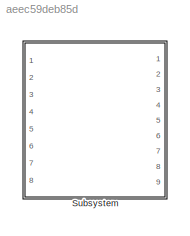
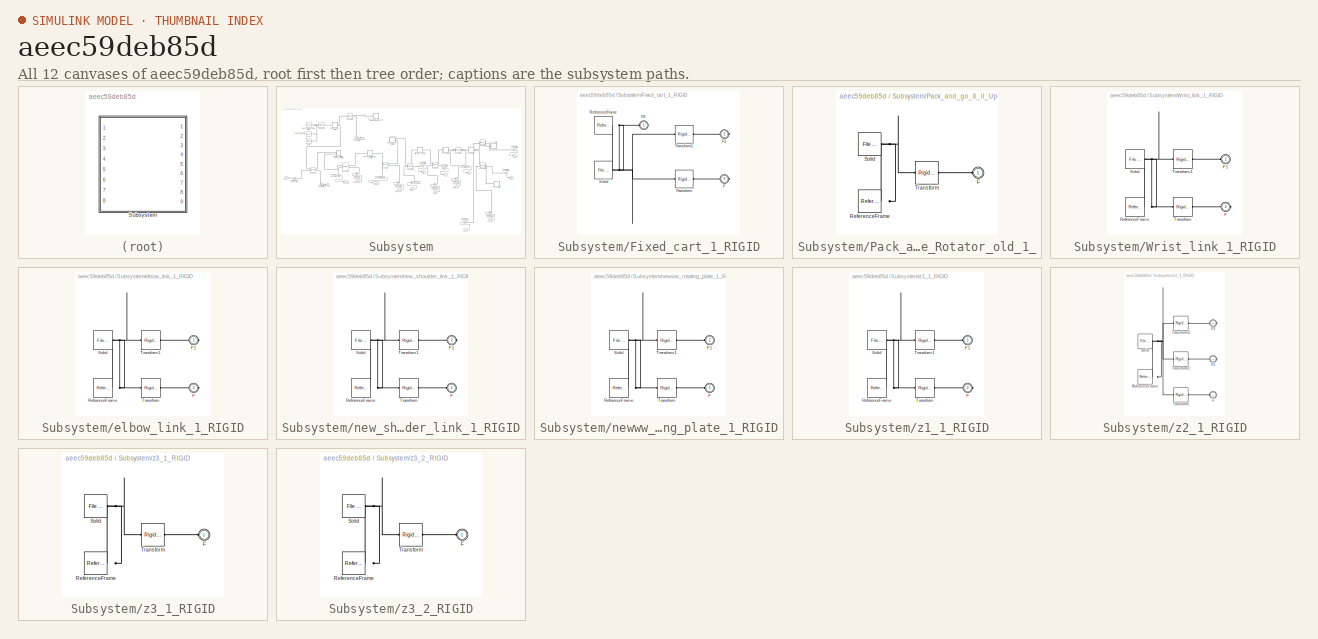
[diagram: thumbnail index - all 12 canvases of the model, root first then tree order]
MODEL slx_aeec59deb85d
KIND model
CONFIG AbsTol = auto
CONFIG EnableMultiTasking = off
CONFIG FixedStep = auto
CONFIG MaxStep = auto
CONFIG MinStep = auto
CONFIG RelTol = 1e-3
CONFIG SampleTimeConstraint = Unconstrained
CONFIG SolverName = VariableStepAuto
CONFIG StartTime = 0.0
CONFIG StopTime = 10.0
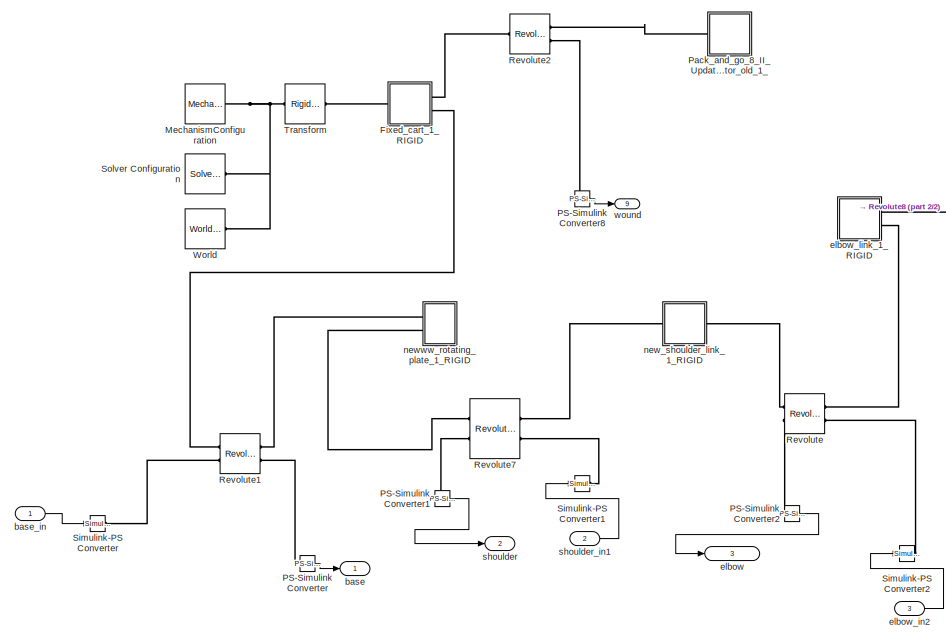
[diagram: Subsystem - part 1/2, middle left region]
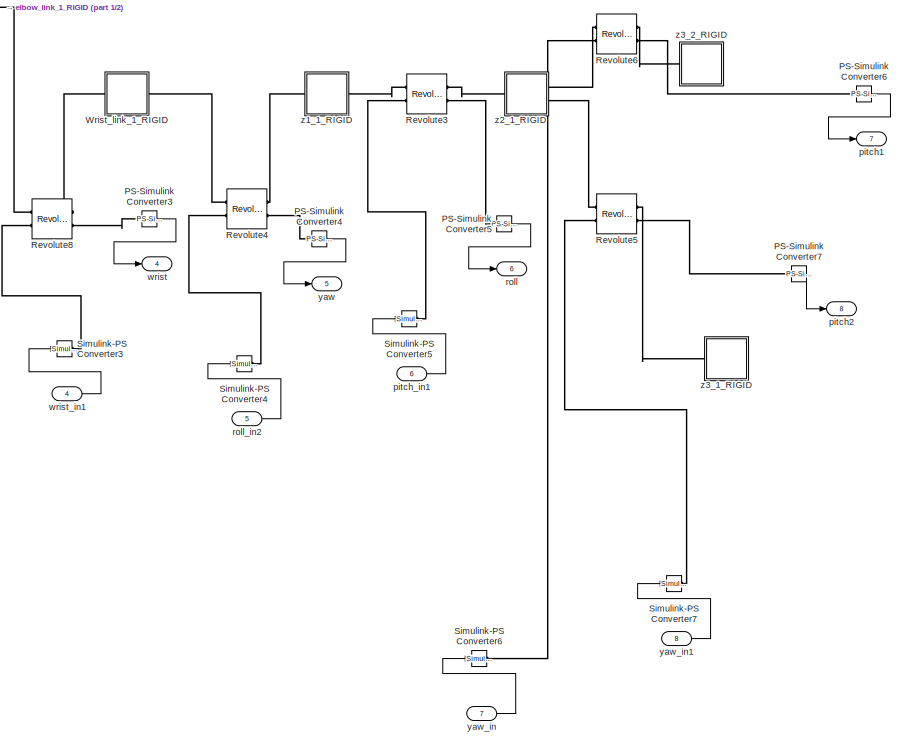
[diagram: Subsystem - part 2/2, right side, full height]
BLOCK [SubSystem] Subsystem
  Ports = [8, 9]
  RequestExecContextInheritance = off
BLOCK [SubSystem] Subsystem/Fixed_cart_1_RIGID
  Ports = [0, 0, 0, 0, 0, 1, 2]
  RequestExecContextInheritance = off
BLOCK [PMIOPort] Subsystem/Fixed_cart_1_RIGID/F
  Port = 3
  Side = Right
BLOCK [PMIOPort] Subsystem/Fixed_cart_1_RIGID/F1
  Port = 2
  Side = Right
BLOCK [PMIOPort] Subsystem/Fixed_cart_1_RIGID/F2
  Side = Left
BLOCK [Reference] Subsystem/Fixed_cart_1_RIGID/ReferenceFrame  REF=sm_lib/Frames and
Transforms/Reference
Frame
  Ports = [0, 0, 0, 0, 0, 0, 1]
  SourceBlock = sm_lib/Frames and\nTransforms/Reference\nFrame
  SourceProductBaseCode = MS
  SourceType = Reference\nFrame
BLOCK [Reference] Subsystem/Fixed_cart_1_RIGID/Solid  REF=sm_lib/Body Elements/File Solid
  Ports = [0, 0, 0, 0, 0, 0, 1]
  SourceBlock = sm_lib/Body Elements/File Solid
  SourceProductBaseCode = MS
  SourceType = File Solid
BLOCK [Reference] Subsystem/Fixed_cart_1_RIGID/Transform  REF=sm_lib/Frames and
Transforms/Rigid
Transform
  Ports = [0, 0, 0, 0, 0, 1, 1]
  SourceBlock = sm_lib/Frames and\nTransforms/Rigid\nTransform
  SourceProductBaseCode = MS
  SourceType = Rigid\nTransform
BLOCK [Reference] Subsystem/Fixed_cart_1_RIGID/Transform1  REF=sm_lib/Frames and
Transforms/Rigid
Transform
  Ports = [0, 0, 0, 0, 0, 1, 1]
  SourceBlock = sm_lib/Frames and\nTransforms/Rigid\nTransform
  SourceProductBaseCode = MS
  SourceType = Rigid\nTransform
BLOCK [Reference] Subsystem/MechanismConfiguration  REF=sm_lib/Utilities/Mechanism
Configuration
  Ports = [0, 0, 0, 0, 0, 0, 1]
  SourceBlock = sm_lib/Utilities/Mechanism\nConfiguration
  SourceProductBaseCode = MS
  SourceType = Mechanism\nConfiguration
BLOCK [Reference] Subsystem/PS-Simulink Converter  REF=nesl_utility/PS-Simulink
Converter
  Ports = [0, 1, 0, 0, 0, 1]
  SourceBlock = nesl_utility/PS-Simulink\nConverter
  SourceProductBaseCode = PW,SS
  SourceType = PS-Simulink\nConverter
BLOCK [Reference] Subsystem/PS-Simulink Converter1  REF=nesl_utility/PS-Simulink
Converter
  Ports = [0, 1, 0, 0, 0, 1]
  SourceBlock = nesl_utility/PS-Simulink\nConverter
  SourceProductBaseCode = PW,SS
  SourceType = PS-Simulink\nConverter
BLOCK [Reference] Subsystem/PS-Simulink Converter2  REF=nesl_utility/PS-Simulink
Converter
  Ports = [0, 1, 0, 0, 0, 1]
  SourceBlock = nesl_utility/PS-Simulink\nConverter
  SourceProductBaseCode = PW,SS
  SourceType = PS-Simulink\nConverter
BLOCK [Reference] Subsystem/PS-Simulink Converter3  REF=nesl_utility/PS-Simulink
Converter
  NameLocation = right
  Ports = [0, 1, 0, 0, 0, 1]
  SourceBlock = nesl_utility/PS-Simulink\nConverter
  SourceProductBaseCode = PW,SS
  SourceType = PS-Simulink\nConverter
BLOCK [Reference] Subsystem/PS-Simulink Converter4  REF=nesl_utility/PS-Simulink
Converter
  NameLocation = right
  Ports = [0, 1, 0, 0, 0, 1]
  SourceBlock = nesl_utility/PS-Simulink\nConverter
  SourceProductBaseCode = PW,SS
  SourceType = PS-Simulink\nConverter
BLOCK [Reference] Subsystem/PS-Simulink Converter5  REF=nesl_utility/PS-Simulink
Converter
  NameLocation = right
  Ports = [0, 1, 0, 0, 0, 1]
  SourceBlock = nesl_utility/PS-Simulink\nConverter
  SourceProductBaseCode = PW,SS
  SourceType = PS-Simulink\nConverter
BLOCK [Reference] Subsystem/PS-Simulink Converter6  REF=nesl_utility/PS-Simulink
Converter
  NameLocation = right
  Ports = [0, 1, 0, 0, 0, 1]
  SourceBlock = nesl_utility/PS-Simulink\nConverter
  SourceProductBaseCode = PW,SS
  SourceType = PS-Simulink\nConverter
BLOCK [Reference] Subsystem/PS-Simulink Converter7  REF=nesl_utility/PS-Simulink
Converter
  NameLocation = right
  Ports = [0, 1, 0, 0, 0, 1]
  SourceBlock = nesl_utility/PS-Simulink\nConverter
  SourceProductBaseCode = PW,SS
  SourceType = PS-Simulink\nConverter
BLOCK [Reference] Subsystem/PS-Simulink Converter8  REF=nesl_utility/PS-Simulink
Converter
  Ports = [0, 1, 0, 0, 0, 1]
  SourceBlock = nesl_utility/PS-Simulink\nConverter
  SourceProductBaseCode = PW,SS
  SourceType = PS-Simulink\nConverter
BLOCK [SubSystem] Subsystem/Pack_and_go_8_II_Updated_Final_Assembly_FileBase_Rotator_old_1_
  Ports = [0, 0, 0, 0, 0, 1]
  RequestExecContextInheritance = off
BLOCK [PMIOPort] Subsystem/Pack_and_go_8_II_Updated_Final_Assembly_FileBase_Rotator_old_1_/F
  Side = Left
BLOCK [Reference] Subsystem/Pack_and_go_8_II_Updated_Final_Assembly_FileBase_Rotator_old_1_/ReferenceFrame  REF=sm_lib/Frames and
Transforms/Reference
Frame
  Ports = [0, 0, 0, 0, 0, 0, 1]
  SourceBlock = sm_lib/Frames and\nTransforms/Reference\nFrame
  SourceProductBaseCode = MS
  SourceType = Reference\nFrame
BLOCK [Reference] Subsystem/Pack_and_go_8_II_Updated_Final_Assembly_FileBase_Rotator_old_1_/Solid  REF=sm_lib/Body Elements/File Solid
  Ports = [0, 0, 0, 0, 0, 0, 1]
  SourceBlock = sm_lib/Body Elements/File Solid
  SourceProductBaseCode = MS
  SourceType = File Solid
BLOCK [Reference] Subsystem/Pack_and_go_8_II_Updated_Final_Assembly_FileBase_Rotator_old_1_/Transform  REF=sm_lib/Frames and
Transforms/Rigid
Transform
  Ports = [0, 0, 0, 0, 0, 1, 1]
  SourceBlock = sm_lib/Frames and\nTransforms/Rigid\nTransform
  SourceProductBaseCode = MS
  SourceType = Rigid\nTransform
BLOCK [Reference] Subsystem/Revolute  REF=sm_lib/Joints/Revolute Joint
  Ports = [0, 0, 0, 0, 0, 2, 2]
  SourceBlock = sm_lib/Joints/Revolute Joint
  SourceProductBaseCode = MS
  SourceType = Revolute Joint
BLOCK [Reference] Subsystem/Revolute1  REF=sm_lib/Joints/Revolute Joint
  Ports = [0, 0, 0, 0, 0, 2, 2]
  SourceBlock = sm_lib/Joints/Revolute Joint
  SourceProductBaseCode = MS
  SourceType = Revolute Joint
BLOCK [Reference] Subsystem/Revolute2  REF=sm_lib/Joints/Revolute Joint
  Ports = [0, 0, 0, 0, 0, 1, 2]
  SourceBlock = sm_lib/Joints/Revolute Joint
  SourceProductBaseCode = MS
  SourceType = Revolute Joint
BLOCK [Reference] Subsystem/Revolute3  REF=sm_lib/Joints/Revolute Joint
  Ports = [0, 0, 0, 0, 0, 2, 2]
  SourceBlock = sm_lib/Joints/Revolute Joint
  SourceProductBaseCode = MS
  SourceType = Revolute Joint
BLOCK [Reference] Subsystem/Revolute4  REF=sm_lib/Joints/Revolute Joint
  Ports = [0, 0, 0, 0, 0, 2, 2]
  SourceBlock = sm_lib/Joints/Revolute Joint
  SourceProductBaseCode = MS
  SourceType = Revolute Joint
BLOCK [Reference] Subsystem/Revolute5  REF=sm_lib/Joints/Revolute Joint
  Ports = [0, 0, 0, 0, 0, 2, 2]
  SourceBlock = sm_lib/Joints/Revolute Joint
  SourceProductBaseCode = MS
  SourceType = Revolute Joint
BLOCK [Reference] Subsystem/Revolute6  REF=sm_lib/Joints/Revolute Joint
  Ports = [0, 0, 0, 0, 0, 2, 2]
  SourceBlock = sm_lib/Joints/Revolute Joint
  SourceProductBaseCode = MS
  SourceType = Revolute Joint
BLOCK [Reference] Subsystem/Revolute7  REF=sm_lib/Joints/Revolute Joint
  Ports = [0, 0, 0, 0, 0, 2, 2]
  SourceBlock = sm_lib/Joints/Revolute Joint
  SourceProductBaseCode = MS
  SourceType = Revolute Joint
BLOCK [Reference] Subsystem/Revolute8  REF=sm_lib/Joints/Revolute Joint
  Ports = [0, 0, 0, 0, 0, 2, 2]
  SourceBlock = sm_lib/Joints/Revolute Joint
  SourceProductBaseCode = MS
  SourceType = Revolute Joint
BLOCK [Reference] Subsystem/Simulink-PS Converter  REF=nesl_utility/Simulink-PS
Converter
  Ports = [1, 0, 0, 0, 0, 0, 1]
  SourceBlock = nesl_utility/Simulink-PS\nConverter
  SourceProductBaseCode = PW,SS
  SourceType = Simulink-PS\nConverter
BLOCK [Reference] Subsystem/Simulink-PS Converter1  REF=nesl_utility/Simulink-PS
Converter
  Ports = [1, 0, 0, 0, 0, 0, 1]
  SourceBlock = nesl_utility/Simulink-PS\nConverter
  SourceProductBaseCode = PW,SS
  SourceType = Simulink-PS\nConverter
BLOCK [Reference] Subsystem/Simulink-PS Converter2  REF=nesl_utility/Simulink-PS
Converter
  Ports = [1, 0, 0, 0, 0, 0, 1]
  SourceBlock = nesl_utility/Simulink-PS\nConverter
  SourceProductBaseCode = PW,SS
  SourceType = Simulink-PS\nConverter
BLOCK [Reference] Subsystem/Simulink-PS Converter3  REF=nesl_utility/Simulink-PS
Converter
  Ports = [1, 0, 0, 0, 0, 0, 1]
  SourceBlock = nesl_utility/Simulink-PS\nConverter
  SourceProductBaseCode = PW,SS
  SourceType = Simulink-PS\nConverter
BLOCK [Reference] Subsystem/Simulink-PS Converter4  REF=nesl_utility/Simulink-PS
Converter
  Ports = [1, 0, 0, 0, 0, 0, 1]
  SourceBlock = nesl_utility/Simulink-PS\nConverter
  SourceProductBaseCode = PW,SS
  SourceType = Simulink-PS\nConverter
BLOCK [Reference] Subsystem/Simulink-PS Converter5  REF=nesl_utility/Simulink-PS
Converter
  Ports = [1, 0, 0, 0, 0, 0, 1]
  SourceBlock = nesl_utility/Simulink-PS\nConverter
  SourceProductBaseCode = PW,SS
  SourceType = Simulink-PS\nConverter
BLOCK [Reference] Subsystem/Simulink-PS Converter6  REF=nesl_utility/Simulink-PS
Converter
  Ports = [1, 0, 0, 0, 0, 0, 1]
  SourceBlock = nesl_utility/Simulink-PS\nConverter
  SourceProductBaseCode = PW,SS
  SourceType = Simulink-PS\nConverter
BLOCK [Reference] Subsystem/Simulink-PS Converter7  REF=nesl_utility/Simulink-PS
Converter
  Ports = [1, 0, 0, 0, 0, 0, 1]
  SourceBlock = nesl_utility/Simulink-PS\nConverter
  SourceProductBaseCode = PW,SS
  SourceType = Simulink-PS\nConverter
BLOCK [Reference] Subsystem/Solver Configuration  REF=nesl_utility/Solver
Configuration
  Ports = [0, 0, 0, 0, 0, 0, 1]
  SourceBlock = nesl_utility/Solver\nConfiguration
  SourceProductBaseCode = PW,SS
  SourceType = Solver\nConfiguration
BLOCK [Reference] Subsystem/Transform  REF=sm_lib/Frames and
Transforms/Rigid
Transform
  Ports = [0, 0, 0, 0, 0, 1, 1]
  SourceBlock = sm_lib/Frames and\nTransforms/Rigid\nTransform
  SourceProductBaseCode = MS
  SourceType = Rigid\nTransform
BLOCK [Reference] Subsystem/World  REF=sm_lib/Frames and
Transforms/World Frame
  Ports = [0, 0, 0, 0, 0, 0, 1]
  SourceBlock = sm_lib/Frames and\nTransforms/World Frame
  SourceProductBaseCode = MS
  SourceType = World Frame
BLOCK [SubSystem] Subsystem/Wrist_link_1_RIGID
  Ports = [0, 0, 0, 0, 0, 1, 1]
  RequestExecContextInheritance = off
BLOCK [PMIOPort] Subsystem/Wrist_link_1_RIGID/F
  Port = 2
  Side = Right
BLOCK [PMIOPort] Subsystem/Wrist_link_1_RIGID/F1
  Side = Left
BLOCK [Reference] Subsystem/Wrist_link_1_RIGID/ReferenceFrame  REF=sm_lib/Frames and
Transforms/Reference
Frame
  Ports = [0, 0, 0, 0, 0, 0, 1]
  SourceBlock = sm_lib/Frames and\nTransforms/Reference\nFrame
  SourceProductBaseCode = MS
  SourceType = Reference\nFrame
BLOCK [Reference] Subsystem/Wrist_link_1_RIGID/Solid  REF=sm_lib/Body Elements/File Solid
  Ports = [0, 0, 0, 0, 0, 0, 1]
  SourceBlock = sm_lib/Body Elements/File Solid
  SourceProductBaseCode = MS
  SourceType = File Solid
BLOCK [Reference] Subsystem/Wrist_link_1_RIGID/Transform  REF=sm_lib/Frames and
Transforms/Rigid
Transform
  Ports = [0, 0, 0, 0, 0, 1, 1]
  SourceBlock = sm_lib/Frames and\nTransforms/Rigid\nTransform
  SourceProductBaseCode = MS
  SourceType = Rigid\nTransform
BLOCK [Reference] Subsystem/Wrist_link_1_RIGID/Transform1  REF=sm_lib/Frames and
Transforms/Rigid
Transform
  Ports = [0, 0, 0, 0, 0, 1, 1]
  SourceBlock = sm_lib/Frames and\nTransforms/Rigid\nTransform
  SourceProductBaseCode = MS
  SourceType = Rigid\nTransform
BLOCK [Outport] Subsystem/base
BLOCK [Inport] Subsystem/base_in
BLOCK [Outport] Subsystem/elbow
  Port = 3
BLOCK [Inport] Subsystem/elbow_in2
  Port = 3
BLOCK [SubSystem] Subsystem/elbow_link_1_RIGID
  Ports = [0, 0, 0, 0, 0, 0, 2]
  RequestExecContextInheritance = off
BLOCK [PMIOPort] Subsystem/elbow_link_1_RIGID/F
  Port = 2
  Side = Right
BLOCK [PMIOPort] Subsystem/elbow_link_1_RIGID/F1
  Side = Right
BLOCK [Reference] Subsystem/elbow_link_1_RIGID/ReferenceFrame  REF=sm_lib/Frames and
Transforms/Reference
Frame
  Ports = [0, 0, 0, 0, 0, 0, 1]
  SourceBlock = sm_lib/Frames and\nTransforms/Reference\nFrame
  SourceProductBaseCode = MS
  SourceType = Reference\nFrame
BLOCK [Reference] Subsystem/elbow_link_1_RIGID/Solid  REF=sm_lib/Body Elements/File Solid
  Ports = [0, 0, 0, 0, 0, 0, 1]
  SourceBlock = sm_lib/Body Elements/File Solid
  SourceProductBaseCode = MS
  SourceType = File Solid
BLOCK [Reference] Subsystem/elbow_link_1_RIGID/Transform  REF=sm_lib/Frames and
Transforms/Rigid
Transform
  Ports = [0, 0, 0, 0, 0, 1, 1]
  SourceBlock = sm_lib/Frames and\nTransforms/Rigid\nTransform
  SourceProductBaseCode = MS
  SourceType = Rigid\nTransform
BLOCK [Reference] Subsystem/elbow_link_1_RIGID/Transform1  REF=sm_lib/Frames and
Transforms/Rigid
Transform
  Ports = [0, 0, 0, 0, 0, 1, 1]
  SourceBlock = sm_lib/Frames and\nTransforms/Rigid\nTransform
  SourceProductBaseCode = MS
  SourceType = Rigid\nTransform
BLOCK [SubSystem] Subsystem/new_shoulder_link_1_RIGID
  Ports = [0, 0, 0, 0, 0, 1, 1]
  RequestExecContextInheritance = off
BLOCK [PMIOPort] Subsystem/new_shoulder_link_1_RIGID/F
  Side = Left
BLOCK [PMIOPort] Subsystem/new_shoulder_link_1_RIGID/F1
  Port = 2
  Side = Right
BLOCK [Reference] Subsystem/new_shoulder_link_1_RIGID/ReferenceFrame  REF=sm_lib/Frames and
Transforms/Reference
Frame
  Ports = [0, 0, 0, 0, 0, 0, 1]
  SourceBlock = sm_lib/Frames and\nTransforms/Reference\nFrame
  SourceProductBaseCode = MS
  SourceType = Reference\nFrame
BLOCK [Reference] Subsystem/new_shoulder_link_1_RIGID/Solid  REF=sm_lib/Body Elements/File Solid
  Ports = [0, 0, 0, 0, 0, 0, 1]
  SourceBlock = sm_lib/Body Elements/File Solid
  SourceProductBaseCode = MS
  SourceType = File Solid
BLOCK [Reference] Subsystem/new_shoulder_link_1_RIGID/Transform  REF=sm_lib/Frames and
Transforms/Rigid
Transform
  Ports = [0, 0, 0, 0, 0, 1, 1]
  SourceBlock = sm_lib/Frames and\nTransforms/Rigid\nTransform
  SourceProductBaseCode = MS
  SourceType = Rigid\nTransform
BLOCK [Reference] Subsystem/new_shoulder_link_1_RIGID/Transform1  REF=sm_lib/Frames and
Transforms/Rigid
Transform
  Ports = [0, 0, 0, 0, 0, 1, 1]
  SourceBlock = sm_lib/Frames and\nTransforms/Rigid\nTransform
  SourceProductBaseCode = MS
  SourceType = Rigid\nTransform
BLOCK [SubSystem] Subsystem/newww_rotating_plate_1_RIGID
  Ports = [0, 0, 0, 0, 0, 2]
  RequestExecContextInheritance = off
BLOCK [PMIOPort] Subsystem/newww_rotating_plate_1_RIGID/F
  Side = Left
BLOCK [PMIOPort] Subsystem/newww_rotating_plate_1_RIGID/F1
  Port = 2
  Side = Left
BLOCK [Reference] Subsystem/newww_rotating_plate_1_RIGID/ReferenceFrame  REF=sm_lib/Frames and
Transforms/Reference
Frame
  Ports = [0, 0, 0, 0, 0, 0, 1]
  SourceBlock = sm_lib/Frames and\nTransforms/Reference\nFrame
  SourceProductBaseCode = MS
  SourceType = Reference\nFrame
BLOCK [Reference] Subsystem/newww_rotating_plate_1_RIGID/Solid  REF=sm_lib/Body Elements/File Solid
  Ports = [0, 0, 0, 0, 0, 0, 1]
  SourceBlock = sm_lib/Body Elements/File Solid
  SourceProductBaseCode = MS
  SourceType = File Solid
BLOCK [Reference] Subsystem/newww_rotating_plate_1_RIGID/Transform  REF=sm_lib/Frames and
Transforms/Rigid
Transform
  Ports = [0, 0, 0, 0, 0, 1, 1]
  SourceBlock = sm_lib/Frames and\nTransforms/Rigid\nTransform
  SourceProductBaseCode = MS
  SourceType = Rigid\nTransform
BLOCK [Reference] Subsystem/newww_rotating_plate_1_RIGID/Transform1  REF=sm_lib/Frames and
Transforms/Rigid
Transform
  Ports = [0, 0, 0, 0, 0, 1, 1]
  SourceBlock = sm_lib/Frames and\nTransforms/Rigid\nTransform
  SourceProductBaseCode = MS
  SourceType = Rigid\nTransform
BLOCK [Outport] Subsystem/pitch1
  Port = 7
BLOCK [Outport] Subsystem/pitch2
  Port = 8
BLOCK [Inport] Subsystem/pitch_in1
  Port = 6
BLOCK [Outport] Subsystem/roll
  Port = 6
BLOCK [Inport] Subsystem/roll_in2
  Port = 5
BLOCK [Outport] Subsystem/shoulder
  Port = 2
BLOCK [Inport] Subsystem/shoulder_in1
  Port = 2
BLOCK [Outport] Subsystem/wound
  Port = 9
BLOCK [Outport] Subsystem/wrist
  Port = 4
BLOCK [Inport] Subsystem/wrist_in1
  Port = 4
BLOCK [Outport] Subsystem/yaw
  Port = 5
BLOCK [Inport] Subsystem/yaw_in
  Port = 7
BLOCK [Inport] Subsystem/yaw_in1
  Port = 8
BLOCK [SubSystem] Subsystem/z1_1_RIGID
  Ports = [0, 0, 0, 0, 0, 1, 1]
  RequestExecContextInheritance = off
BLOCK [PMIOPort] Subsystem/z1_1_RIGID/F
  Port = 2
  Side = Right
BLOCK [PMIOPort] Subsystem/z1_1_RIGID/F1
  Side = Left
BLOCK [Reference] Subsystem/z1_1_RIGID/ReferenceFrame  REF=sm_lib/Frames and
Transforms/Reference
Frame
  Ports = [0, 0, 0, 0, 0, 0, 1]
  SourceBlock = sm_lib/Frames and\nTransforms/Reference\nFrame
  SourceProductBaseCode = MS
  SourceType = Reference\nFrame
BLOCK [Reference] Subsystem/z1_1_RIGID/Solid  REF=sm_lib/Body Elements/File Solid
  Ports = [0, 0, 0, 0, 0, 0, 1]
  SourceBlock = sm_lib/Body Elements/File Solid
  SourceProductBaseCode = MS
  SourceType = File Solid
BLOCK [Reference] Subsystem/z1_1_RIGID/Transform  REF=sm_lib/Frames and
Transforms/Rigid
Transform
  Ports = [0, 0, 0, 0, 0, 1, 1]
  SourceBlock = sm_lib/Frames and\nTransforms/Rigid\nTransform
  SourceProductBaseCode = MS
  SourceType = Rigid\nTransform
BLOCK [Reference] Subsystem/z1_1_RIGID/Transform1  REF=sm_lib/Frames and
Transforms/Rigid
Transform
  Ports = [0, 0, 0, 0, 0, 1, 1]
  SourceBlock = sm_lib/Frames and\nTransforms/Rigid\nTransform
  SourceProductBaseCode = MS
  SourceType = Rigid\nTransform
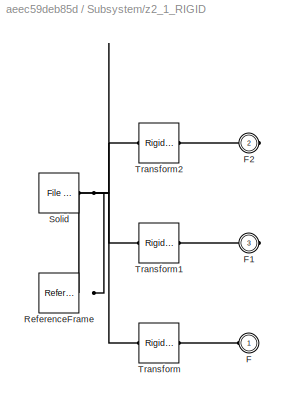
BLOCK [SubSystem] Subsystem/z2_1_RIGID
  Ports = [0, 0, 0, 0, 0, 1, 2]
  RequestExecContextInheritance = off
BLOCK [PMIOPort] Subsystem/z2_1_RIGID/F
  Side = Left
BLOCK [PMIOPort] Subsystem/z2_1_RIGID/F1
  Port = 3
  Side = Right
BLOCK [PMIOPort] Subsystem/z2_1_RIGID/F2
  Port = 2
  Side = Right
BLOCK [Reference] Subsystem/z2_1_RIGID/ReferenceFrame  REF=sm_lib/Frames and
Transforms/Reference
Frame
  Ports = [0, 0, 0, 0, 0, 0, 1]
  SourceBlock = sm_lib/Frames and\nTransforms/Reference\nFrame
  SourceProductBaseCode = MS
  SourceType = Reference\nFrame
BLOCK [Reference] Subsystem/z2_1_RIGID/Solid  REF=sm_lib/Body Elements/File Solid
  Ports = [0, 0, 0, 0, 0, 0, 1]
  SourceBlock = sm_lib/Body Elements/File Solid
  SourceProductBaseCode = MS
  SourceType = File Solid
BLOCK [Reference] Subsystem/z2_1_RIGID/Transform  REF=sm_lib/Frames and
Transforms/Rigid
Transform
  Ports = [0, 0, 0, 0, 0, 1, 1]
  SourceBlock = sm_lib/Frames and\nTransforms/Rigid\nTransform
  SourceProductBaseCode = MS
  SourceType = Rigid\nTransform
BLOCK [Reference] Subsystem/z2_1_RIGID/Transform1  REF=sm_lib/Frames and
Transforms/Rigid
Transform
  Ports = [0, 0, 0, 0, 0, 1, 1]
  SourceBlock = sm_lib/Frames and\nTransforms/Rigid\nTransform
  SourceProductBaseCode = MS
  SourceType = Rigid\nTransform
BLOCK [Reference] Subsystem/z2_1_RIGID/Transform2  REF=sm_lib/Frames and
Transforms/Rigid
Transform
  Ports = [0, 0, 0, 0, 0, 1, 1]
  SourceBlock = sm_lib/Frames and\nTransforms/Rigid\nTransform
  SourceProductBaseCode = MS
  SourceType = Rigid\nTransform
BLOCK [SubSystem] Subsystem/z3_1_RIGID
  Ports = [0, 0, 0, 0, 0, 1]
  RequestExecContextInheritance = off
BLOCK [PMIOPort] Subsystem/z3_1_RIGID/F
  Side = Left
BLOCK [Reference] Subsystem/z3_1_RIGID/ReferenceFrame  REF=sm_lib/Frames and
Transforms/Reference
Frame
  Ports = [0, 0, 0, 0, 0, 0, 1]
  SourceBlock = sm_lib/Frames and\nTransforms/Reference\nFrame
  SourceProductBaseCode = MS
  SourceType = Reference\nFrame
BLOCK [Reference] Subsystem/z3_1_RIGID/Solid  REF=sm_lib/Body Elements/File Solid
  Ports = [0, 0, 0, 0, 0, 0, 1]
  SourceBlock = sm_lib/Body Elements/File Solid
  SourceProductBaseCode = MS
  SourceType = File Solid
BLOCK [Reference] Subsystem/z3_1_RIGID/Transform  REF=sm_lib/Frames and
Transforms/Rigid
Transform
  Ports = [0, 0, 0, 0, 0, 1, 1]
  SourceBlock = sm_lib/Frames and\nTransforms/Rigid\nTransform
  SourceProductBaseCode = MS
  SourceType = Rigid\nTransform
BLOCK [SubSystem] Subsystem/z3_2_RIGID
  Ports = [0, 0, 0, 0, 0, 1]
  RequestExecContextInheritance = off
BLOCK [PMIOPort] Subsystem/z3_2_RIGID/F
  Side = Left
BLOCK [Reference] Subsystem/z3_2_RIGID/ReferenceFrame  REF=sm_lib/Frames and
Transforms/Reference
Frame
  Ports = [0, 0, 0, 0, 0, 0, 1]
  SourceBlock = sm_lib/Frames and\nTransforms/Reference\nFrame
  SourceProductBaseCode = MS
  SourceType = Reference\nFrame
BLOCK [Reference] Subsystem/z3_2_RIGID/Solid  REF=sm_lib/Body Elements/File Solid
  Ports = [0, 0, 0, 0, 0, 0, 1]
  SourceBlock = sm_lib/Body Elements/File Solid
  SourceProductBaseCode = MS
  SourceType = File Solid
BLOCK [Reference] Subsystem/z3_2_RIGID/Transform  REF=sm_lib/Frames and
Transforms/Rigid
Transform
  Ports = [0, 0, 0, 0, 0, 1, 1]
  SourceBlock = sm_lib/Frames and\nTransforms/Rigid\nTransform
  SourceProductBaseCode = MS
  SourceType = Rigid\nTransform
LINE Subsystem/PS-Simulink Converter1:1 -> Subsystem/shoulder:1
LINE Subsystem/PS-Simulink Converter2:1 -> Subsystem/elbow:1
LINE Subsystem/PS-Simulink Converter3:1 -> Subsystem/wrist:1
LINE Subsystem/PS-Simulink Converter4:1 -> Subsystem/yaw:1
LINE Subsystem/PS-Simulink Converter5:1 -> Subsystem/roll:1
LINE Subsystem/PS-Simulink Converter6:1 -> Subsystem/pitch1:1
LINE Subsystem/PS-Simulink Converter7:1 -> Subsystem/pitch2:1
LINE Subsystem/PS-Simulink Converter8:1 -> Subsystem/wound:1
LINE Subsystem/PS-Simulink Converter:1 -> Subsystem/base:1
LINE Subsystem/base_in:1 -> Subsystem/Simulink-PS Converter:1
LINE Subsystem/elbow_in2:1 -> Subsystem/Simulink-PS Converter2:1
LINE Subsystem/pitch_in1:1 -> Subsystem/Simulink-PS Converter5:1
LINE Subsystem/roll_in2:1 -> Subsystem/Simulink-PS Converter4:1
LINE Subsystem/shoulder_in1:1 -> Subsystem/Simulink-PS Converter1:1
LINE Subsystem/wrist_in1:1 -> Subsystem/Simulink-PS Converter3:1
LINE Subsystem/yaw_in1:1 -> Subsystem/Simulink-PS Converter7:1
LINE Subsystem/yaw_in:1 -> Subsystem/Simulink-PS Converter6:1
PLINE Subsystem/Fixed_cart_1_RIGID/F1:RConn1 -- Subsystem/Fixed_cart_1_RIGID/Transform1:RConn1
PNET net1: Subsystem/Fixed_cart_1_RIGID/F2:RConn1 -- Subsystem/Fixed_cart_1_RIGID/ReferenceFrame:RConn1 -- Subsystem/Fixed_cart_1_RIGID/Solid:RConn1 -- Subsystem/Fixed_cart_1_RIGID/Transform1:LConn1 -- Subsystem/Fixed_cart_1_RIGID/Transform:LConn1
PLINE Subsystem/Fixed_cart_1_RIGID/F:RConn1 -- Subsystem/Fixed_cart_1_RIGID/Transform:RConn1
PLINE Subsystem/Fixed_cart_1_RIGID:LConn1 -- Subsystem/Transform:RConn1
PLINE Subsystem/Fixed_cart_1_RIGID:RConn1 -- Subsystem/Revolute2:LConn1
PLINE Subsystem/Fixed_cart_1_RIGID:RConn2 -- Subsystem/Revolute1:LConn1
PNET net2: Subsystem/MechanismConfiguration:RConn1 -- Subsystem/Solver Configuration:RConn1 -- Subsystem/Transform:LConn1 -- Subsystem/World:RConn1
PLINE Subsystem/PS-Simulink Converter1:LConn1 -- Subsystem/Revolute7:RConn2
PLINE Subsystem/PS-Simulink Converter2:LConn1 -- Subsystem/Revolute:RConn2
PLINE Subsystem/PS-Simulink Converter3:LConn1 -- Subsystem/Revolute8:RConn2
PLINE Subsystem/PS-Simulink Converter4:LConn1 -- Subsystem/Revolute4:RConn2
PLINE Subsystem/PS-Simulink Converter5:LConn1 -- Subsystem/Revolute3:RConn2
PLINE Subsystem/PS-Simulink Converter6:LConn1 -- Subsystem/Revolute6:RConn2
PLINE Subsystem/PS-Simulink Converter7:LConn1 -- Subsystem/Revolute5:RConn2
PLINE Subsystem/PS-Simulink Converter8:LConn1 -- Subsystem/Revolute2:RConn2
PLINE Subsystem/PS-Simulink Converter:LConn1 -- Subsystem/Revolute1:RConn2
PLINE Subsystem/Pack_and_go_8_II_Updated_Final_Assembly_FileBase_Rotator_old_1_/F:RConn1 -- Subsystem/Pack_and_go_8_II_Updated_Final_Assembly_FileBase_Rotator_old_1_/Transform:RConn1
PNET net3: Subsystem/Pack_and_go_8_II_Updated_Final_Assembly_FileBase_Rotator_old_1_/ReferenceFrame:RConn1 -- Subsystem/Pack_and_go_8_II_Updated_Final_Assembly_FileBase_Rotator_old_1_/Solid:RConn1 -- Subsystem/Pack_and_go_8_II_Updated_Final_Assembly_FileBase_Rotator_old_1_/Transform:LConn1
PLINE Subsystem/Pack_and_go_8_II_Updated_Final_Assembly_FileBase_Rotator_old_1_:LConn1 -- Subsystem/Revolute2:RConn1
PLINE Subsystem/Revolute1:LConn2 -- Subsystem/Simulink-PS Converter:RConn1
PLINE Subsystem/Revolute1:RConn1 -- Subsystem/newww_rotating_plate_1_RIGID:LConn1
PLINE Subsystem/Revolute3:LConn1 -- Subsystem/z1_1_RIGID:RConn1
PLINE Subsystem/Revolute3:LConn2 -- Subsystem/Simulink-PS Converter5:RConn1
PLINE Subsystem/Revolute3:RConn1 -- Subsystem/z2_1_RIGID:LConn1
PLINE Subsystem/Revolute4:LConn1 -- Subsystem/Wrist_link_1_RIGID:RConn1
PLINE Subsystem/Revolute4:LConn2 -- Subsystem/Simulink-PS Converter4:RConn1
PLINE Subsystem/Revolute4:RConn1 -- Subsystem/z1_1_RIGID:LConn1
PLINE Subsystem/Revolute5:LConn1 -- Subsystem/z2_1_RIGID:RConn2
PLINE Subsystem/Revolute5:LConn2 -- Subsystem/Simulink-PS Converter7:RConn1
PLINE Subsystem/Revolute5:RConn1 -- Subsystem/z3_1_RIGID:LConn1
PLINE Subsystem/Revolute6:LConn1 -- Subsystem/z2_1_RIGID:RConn1
PLINE Subsystem/Revolute6:LConn2 -- Subsystem/Simulink-PS Converter6:RConn1
PLINE Subsystem/Revolute6:RConn1 -- Subsystem/z3_2_RIGID:LConn1
PLINE Subsystem/Revolute7:LConn1 -- Subsystem/new_shoulder_link_1_RIGID:RConn1
PLINE Subsystem/Revolute7:LConn2 -- Subsystem/Simulink-PS Converter1:RConn1
PLINE Subsystem/Revolute7:RConn1 -- Subsystem/newww_rotating_plate_1_RIGID:LConn2
PLINE Subsystem/Revolute8:LConn1 -- Subsystem/elbow_link_1_RIGID:RConn1
PLINE Subsystem/Revolute8:LConn2 -- Subsystem/Simulink-PS Converter3:RConn1
PLINE Subsystem/Revolute8:RConn1 -- Subsystem/Wrist_link_1_RIGID:LConn1
PLINE Subsystem/Revolute:LConn1 -- Subsystem/elbow_link_1_RIGID:RConn2
PLINE Subsystem/Revolute:LConn2 -- Subsystem/Simulink-PS Converter2:RConn1
PLINE Subsystem/Revolute:RConn1 -- Subsystem/new_shoulder_link_1_RIGID:LConn1
PLINE Subsystem/Wrist_link_1_RIGID/F1:RConn1 -- Subsystem/Wrist_link_1_RIGID/Transform1:RConn1
PLINE Subsystem/Wrist_link_1_RIGID/F:RConn1 -- Subsystem/Wrist_link_1_RIGID/Transform:RConn1
PNET net4: Subsystem/Wrist_link_1_RIGID/ReferenceFrame:RConn1 -- Subsystem/Wrist_link_1_RIGID/Solid:RConn1 -- Subsystem/Wrist_link_1_RIGID/Transform1:LConn1 -- Subsystem/Wrist_link_1_RIGID/Transform:LConn1
PLINE Subsystem/elbow_link_1_RIGID/F1:RConn1 -- Subsystem/elbow_link_1_RIGID/Transform1:RConn1
PLINE Subsystem/elbow_link_1_RIGID/F:RConn1 -- Subsystem/elbow_link_1_RIGID/Transform:RConn1
PNET net5: Subsystem/elbow_link_1_RIGID/ReferenceFrame:RConn1 -- Subsystem/elbow_link_1_RIGID/Solid:RConn1 -- Subsystem/elbow_link_1_RIGID/Transform1:LConn1 -- Subsystem/elbow_link_1_RIGID/Transform:LConn1
PLINE Subsystem/new_shoulder_link_1_RIGID/F1:RConn1 -- Subsystem/new_shoulder_link_1_RIGID/Transform1:RConn1
PLINE Subsystem/new_shoulder_link_1_RIGID/F:RConn1 -- Subsystem/new_shoulder_link_1_RIGID/Transform:RConn1
PNET net6: Subsystem/new_shoulder_link_1_RIGID/ReferenceFrame:RConn1 -- Subsystem/new_shoulder_link_1_RIGID/Solid:RConn1 -- Subsystem/new_shoulder_link_1_RIGID/Transform1:LConn1 -- Subsystem/new_shoulder_link_1_RIGID/Transform:LConn1
PLINE Subsystem/newww_rotating_plate_1_RIGID/F1:RConn1 -- Subsystem/newww_rotating_plate_1_RIGID/Transform1:RConn1
PLINE Subsystem/newww_rotating_plate_1_RIGID/F:RConn1 -- Subsystem/newww_rotating_plate_1_RIGID/Transform:RConn1
PNET net7: Subsystem/newww_rotating_plate_1_RIGID/ReferenceFrame:RConn1 -- Subsystem/newww_rotating_plate_1_RIGID/Solid:RConn1 -- Subsystem/newww_rotating_plate_1_RIGID/Transform1:LConn1 -- Subsystem/newww_rotating_plate_1_RIGID/Transform:LConn1
PLINE Subsystem/z1_1_RIGID/F1:RConn1 -- Subsystem/z1_1_RIGID/Transform1:RConn1
PLINE Subsystem/z1_1_RIGID/F:RConn1 -- Subsystem/z1_1_RIGID/Transform:RConn1
PNET net8: Subsystem/z1_1_RIGID/ReferenceFrame:RConn1 -- Subsystem/z1_1_RIGID/Solid:RConn1 -- Subsystem/z1_1_RIGID/Transform1:LConn1 -- Subsystem/z1_1_RIGID/Transform:LConn1
PLINE Subsystem/z2_1_RIGID/F1:RConn1 -- Subsystem/z2_1_RIGID/Transform1:RConn1
PLINE Subsystem/z2_1_RIGID/F2:RConn1 -- Subsystem/z2_1_RIGID/Transform2:RConn1
PLINE Subsystem/z2_1_RIGID/F:RConn1 -- Subsystem/z2_1_RIGID/Transform:RConn1
PNET net9: Subsystem/z2_1_RIGID/ReferenceFrame:RConn1 -- Subsystem/z2_1_RIGID/Solid:RConn1 -- Subsystem/z2_1_RIGID/Transform1:LConn1 -- Subsystem/z2_1_RIGID/Transform2:LConn1 -- Subsystem/z2_1_RIGID/Transform:LConn1
PLINE Subsystem/z3_1_RIGID/F:RConn1 -- Subsystem/z3_1_RIGID/Transform:RConn1
PNET net10: Subsystem/z3_1_RIGID/ReferenceFrame:RConn1 -- Subsystem/z3_1_RIGID/Solid:RConn1 -- Subsystem/z3_1_RIGID/Transform:LConn1
PLINE Subsystem/z3_2_RIGID/F:RConn1 -- Subsystem/z3_2_RIGID/Transform:RConn1
PNET net11: Subsystem/z3_2_RIGID/ReferenceFrame:RConn1 -- Subsystem/z3_2_RIGID/Solid:RConn1 -- Subsystem/z3_2_RIGID/Transform:LConn1
note: PNET lines group multi-terminal physical nets as a canonical sorted terminal list (undirected conserving connections); 2-terminal nets keep the pairwise PLINE form
